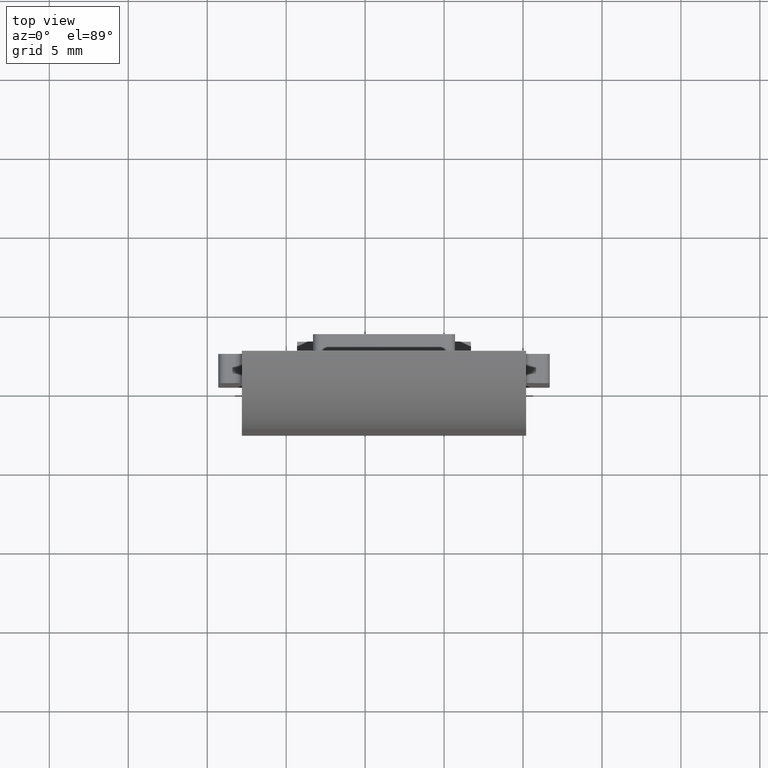
[diagram: clean part render]
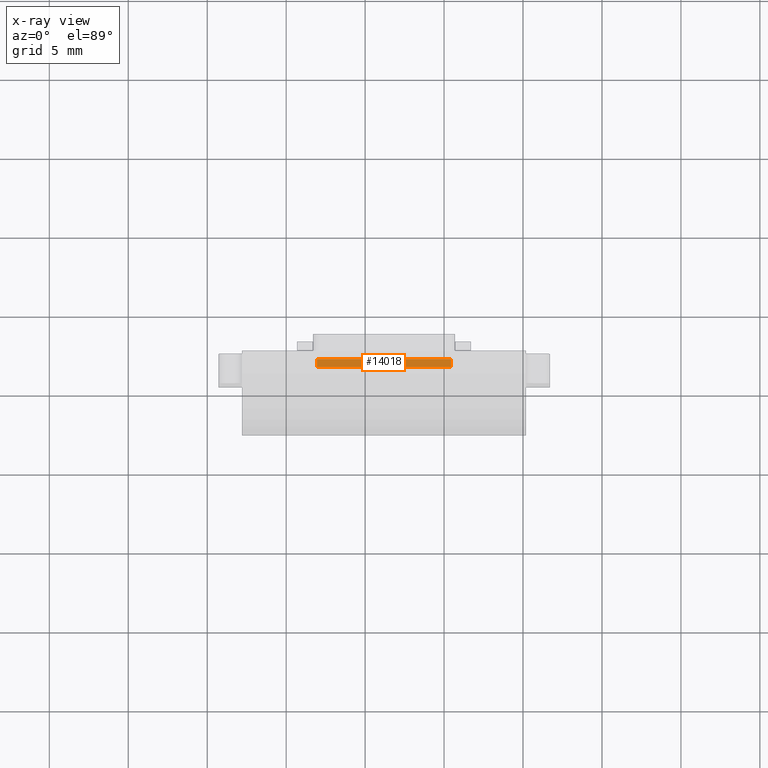
[diagram: x-ray — body ghosted, one internal face saturated and labeled with its STEP entity id]
A machine part, top view, then the same camera in x-ray: the body is ghosted and one INTERNAL B-rep face — a face not visible from any outside direction — is saturated and labeled: STEP entity #14018.
In plain terms, the highlighted planar face has unit normal (0, -0, -1).
Its self-contained STEP definition (entity closure, byte-faithful):
#274 = VERTEX_POINT ( 'NONE', #1450 ) ;
#320 = CARTESIAN_POINT ( 'NONE',  ( -4.250000000000000000, 4.750000000000001776, 5.799999999999978506 ) ) ;
#705 = CARTESIAN_POINT ( 'NONE',  ( -4.250000000000000000, 4.250000000000001776, 5.799999999999978506 ) ) ;
#930 = VECTOR ( 'NONE', #5937, 1000.000000000000000 ) ;
#1450 = CARTESIAN_POINT ( 'NONE',  ( 4.249999999999998224, 4.750000000000001776, 5.799999999999978506 ) ) ;
#1475 = EDGE_CURVE ( 'NONE', #6416, #8275, #15699, .T. ) ;
#2336 = DIRECTION ( 'NONE',  ( 0.000000000000000000, -4.511634527898065801E-17, -1.000000000000000000 ) ) ;
#2482 = VECTOR ( 'NONE', #3262, 1000.000000000000000 ) ;
#2917 = CARTESIAN_POINT ( 'NONE',  ( -4.250000000000000000, 4.250000000000001776, 5.799999999999978506 ) ) ;
#3124 = VECTOR ( 'NONE', #10237, 1000.000000000000000 ) ;
#3262 = DIRECTION ( 'NONE',  ( 0.000000000000000000, 1.000000000000000000, -4.511634527898065801E-17 ) ) ;
#3745 = AXIS2_PLACEMENT_3D ( 'NONE', #10543, #2336, #4965 ) ;
#4481 = ORIENTED_EDGE ( 'NONE', *, *, #8440, .T. ) ;
#4790 = LINE ( 'NONE', #5998, #930 ) ;
#4965 = DIRECTION ( 'NONE',  ( 0.000000000000000000, 1.000000000000000000, -4.511634527898065801E-17 ) ) ;
#5937 = DIRECTION ( 'NONE',  ( -1.000000000000000000, -0.000000000000000000, -0.000000000000000000 ) ) ;
#5998 = CARTESIAN_POINT ( 'NONE',  ( -4.750000000000000888, 4.750000000000001776, 5.799999999999978506 ) ) ;
#6416 = VERTEX_POINT ( 'NONE', #15177 ) ;
#7147 = FACE_OUTER_BOUND ( 'NONE', #9027, .T. ) ;
#7445 = CARTESIAN_POINT ( 'NONE',  ( -4.750000000000000888, 4.250000000000001776, 5.799999999999978506 ) ) ;
#7587 = PLANE ( 'NONE',  #3745 ) ;
#8275 = VERTEX_POINT ( 'NONE', #2917 ) ;
#8397 = VECTOR ( 'NONE', #11397, 1000.000000000000000 ) ;
#8440 = EDGE_CURVE ( 'NONE', #6416, #274, #8865, .T. ) ;
#8865 = LINE ( 'NONE', #10283, #2482 ) ;
#9027 = EDGE_LOOP ( 'NONE', ( #15541, #12626, #10148, #4481 ) ) ;
#10148 = ORIENTED_EDGE ( 'NONE', *, *, #1475, .F. ) ;
#10209 = EDGE_CURVE ( 'NONE', #274, #10837, #4790, .T. ) ;
#10237 = DIRECTION ( 'NONE',  ( -0.000000000000000000, -1.000000000000000000, 4.511634527898065801E-17 ) ) ;
#10283 = CARTESIAN_POINT ( 'NONE',  ( 4.249999999999998224, 4.750000000000000888, 5.799999999999978506 ) ) ;
#10543 = CARTESIAN_POINT ( 'NONE',  ( -4.750000000000000888, 4.250000000000001776, 5.799999999999978506 ) ) ;
#10837 = VERTEX_POINT ( 'NONE', #320 ) ;
#11397 = DIRECTION ( 'NONE',  ( -1.000000000000000000, -0.000000000000000000, -0.000000000000000000 ) ) ;
#11916 = LINE ( 'NONE', #705, #3124 ) ;
#12626 = ORIENTED_EDGE ( 'NONE', *, *, #12817, .T. ) ;
#12817 = EDGE_CURVE ( 'NONE', #10837, #8275, #11916, .T. ) ;
#14018 = ADVANCED_FACE ( 'NONE', ( #7147 ), #7587, .F. ) ;
#15177 = CARTESIAN_POINT ( 'NONE',  ( 4.249999999999998224, 4.250000000000001776, 5.799999999999978506 ) ) ;
#15541 = ORIENTED_EDGE ( 'NONE', *, *, #10209, .T. ) ;
#15699 = LINE ( 'NONE', #7445, #8397 ) ;